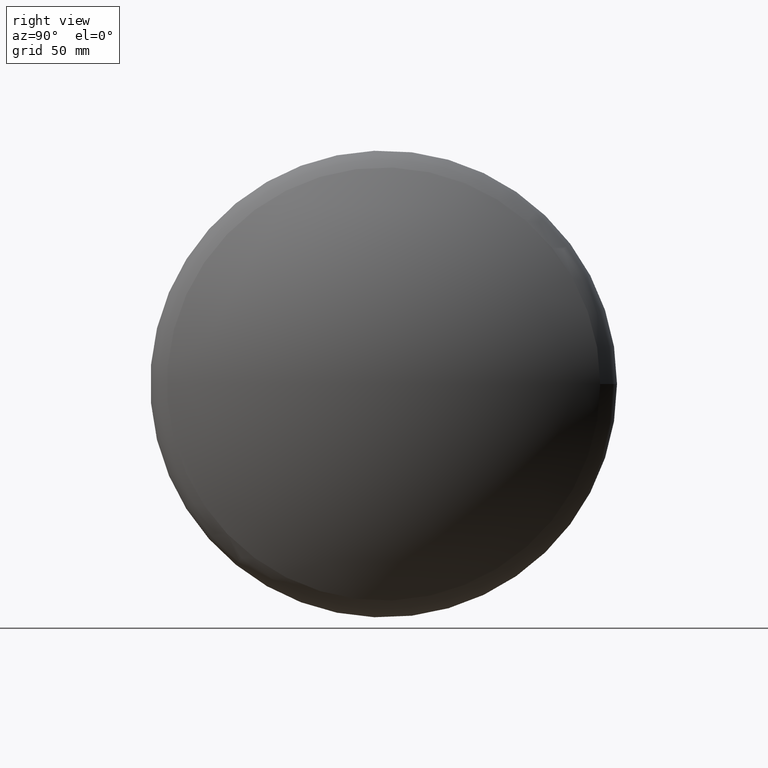
[diagram: clean part render]
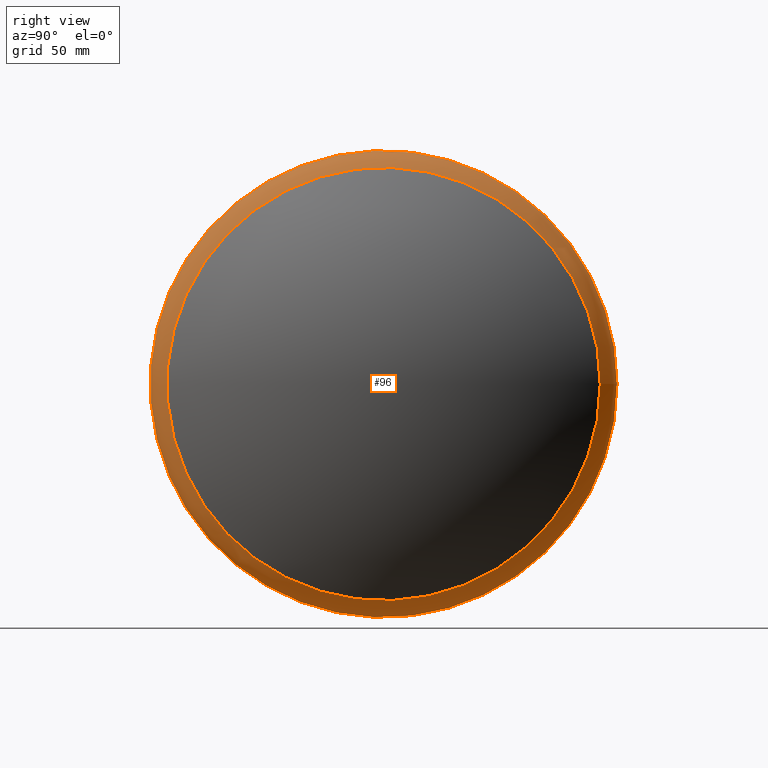
[diagram: same view with one face highlighted and labeled with its STEP entity id]
A machine part, right view. The second image highlights one B-rep face of the part: STEP entity #96.
In plain terms, the highlighted toroidal blend (fillet) surface has major radius 74.5 mm and minor (blend) radius 16 mm.
Its self-contained STEP definition (entity closure, byte-faithful):
#21=FACE_BOUND('',#38,.T.);
#28=FACE_OUTER_BOUND('',#37,.T.);
#37=EDGE_LOOP('',(#77));
#38=EDGE_LOOP('',(#78));
#53=CIRCLE('',#108,90.5);
#54=CIRCLE('',#109,83.9917169316486);
#61=VERTEX_POINT('',#162);
#62=VERTEX_POINT('',#164);
#69=EDGE_CURVE('',#61,#61,#53,.T.);
#70=EDGE_CURVE('',#62,#62,#54,.T.);
#77=ORIENTED_EDGE('',*,*,#69,.T.);
#78=ORIENTED_EDGE('',*,*,#70,.T.);
#93=TOROIDAL_SURFACE('',#107,74.5,16.);
#96=ADVANCED_FACE('',(#28,#21),#93,.T.);
#107=AXIS2_PLACEMENT_3D('',#161,#126,#127);
#108=AXIS2_PLACEMENT_3D('',#163,#128,#129);
#109=AXIS2_PLACEMENT_3D('',#165,#130,#131);
#126=DIRECTION('center_axis',(1.,1.4877185843668E-16,0.));
#127=DIRECTION('ref_axis',(0.,0.,-1.));
#128=DIRECTION('center_axis',(1.,1.4877185843668E-16,0.));
#129=DIRECTION('ref_axis',(1.47211892767976E-16,-1.,1.83697019872103E-16));
#130=DIRECTION('center_axis',(-1.,-1.4877185843668E-16,0.));
#131=DIRECTION('ref_axis',(1.47211892767976E-16,-1.,1.83697019872103E-16));
#161=CARTESIAN_POINT('Origin',(-40.484786739385,-6.02299696163095E-15,0.));
#162=CARTESIAN_POINT('',(-40.484786739385,90.5,-5.54152676614177E-15));
#163=CARTESIAN_POINT('Origin',(-40.484786739385,-6.02299696163095E-15,0.));
#164=CARTESIAN_POINT('',(-27.6042855965934,83.9917169316486,-2.57150468238085E-14));
#165=CARTESIAN_POINT('Origin',(-27.6042855965934,-4.58128263367935E-15,
0.));